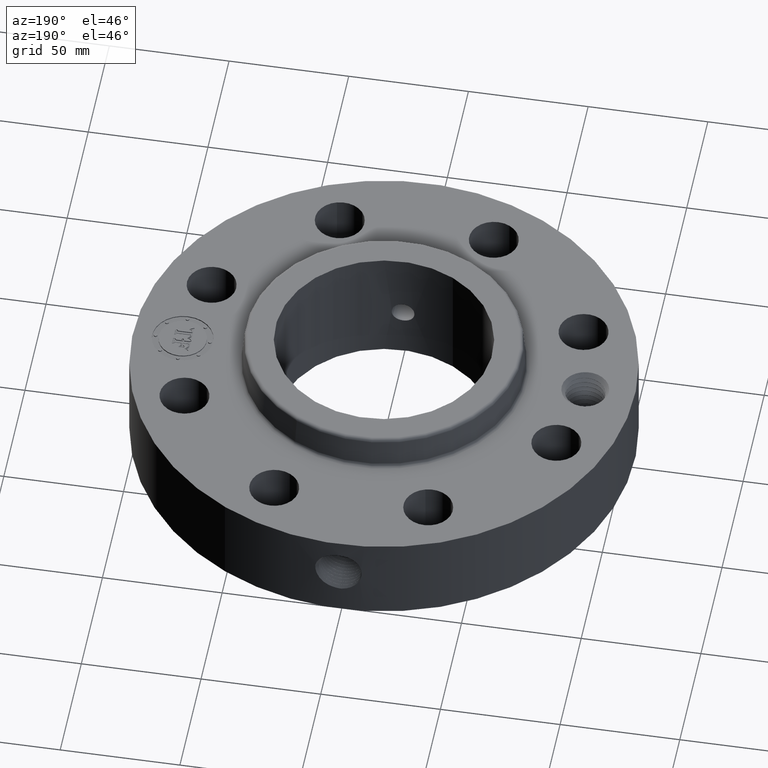
[diagram: clean part render]
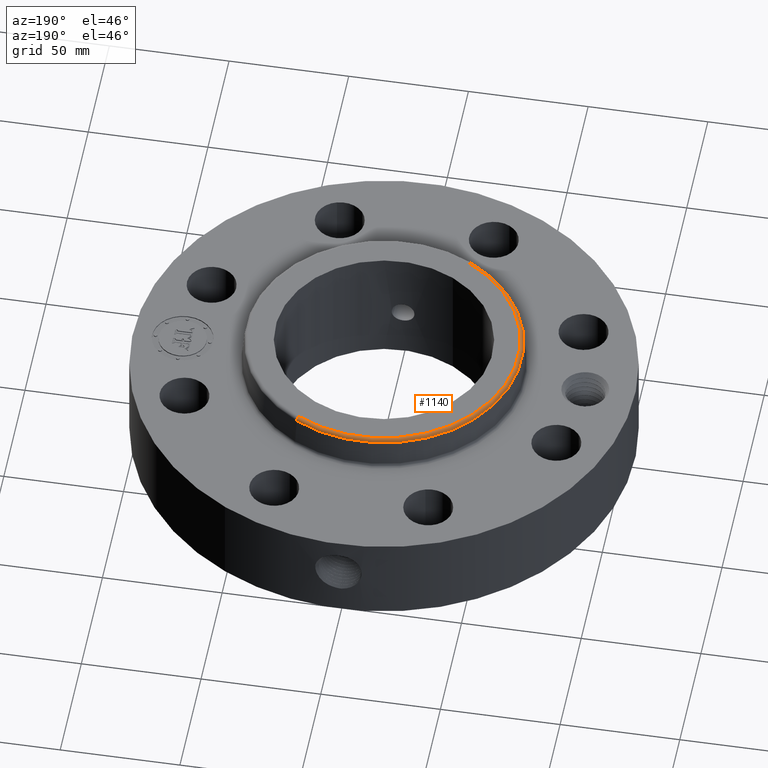
[diagram: same view with one face highlighted and labeled with its STEP entity id]
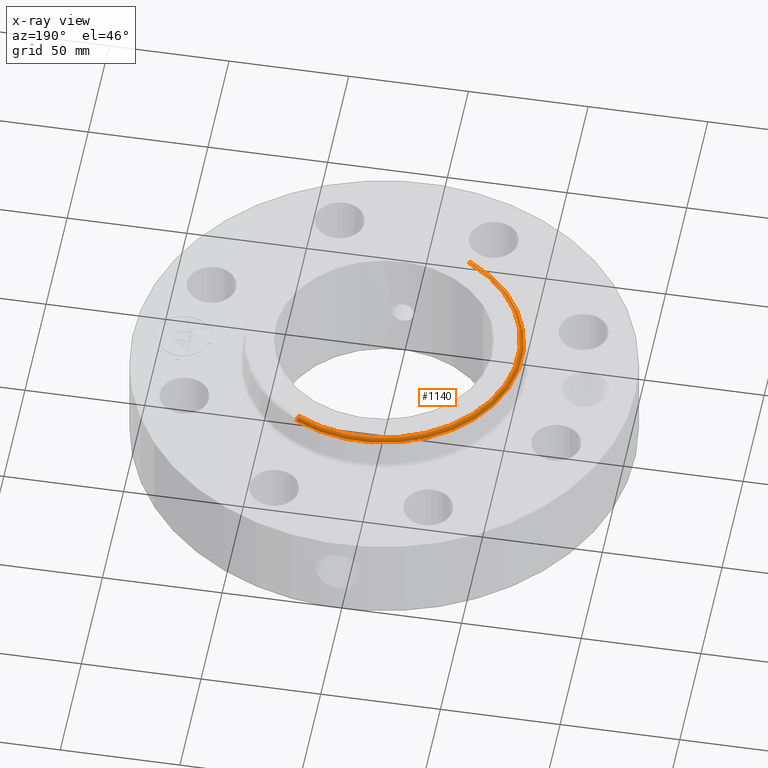
[diagram: x-ray of the same camera — body ghosted, the highlighted face saturated]
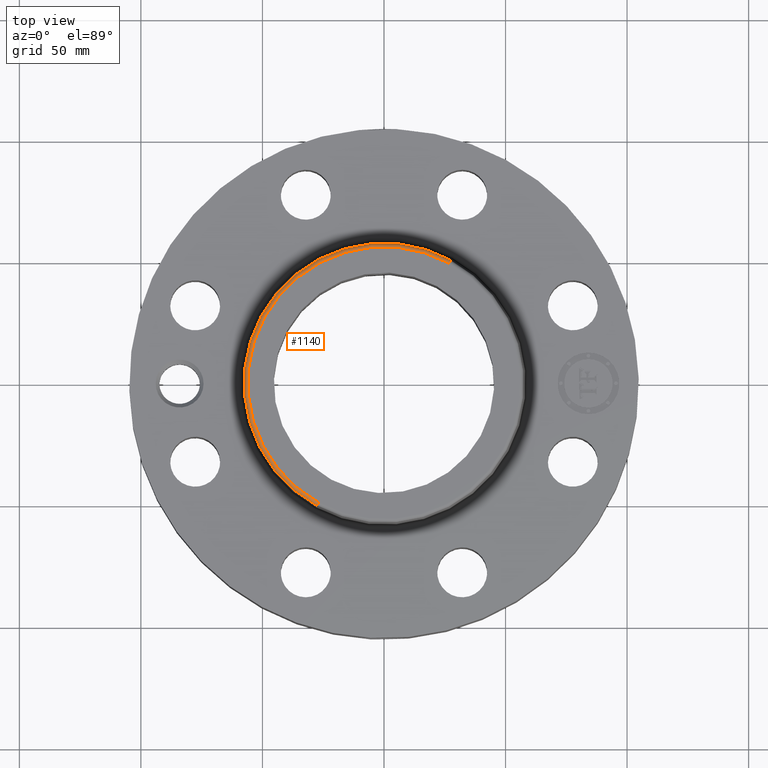
[diagram: same view with one face highlighted and labeled with its STEP entity id]
A machine part, auxiliary view. The second image highlights one B-rep face of the part: STEP entity #1140.
The next image is the same camera in x-ray: the body ghosted, the highlighted face saturated — about 0% of this face is hidden behind the body in this view.
A second angle (top view) of the same face is appended — the face is thin or edge-on in the first view.
In plain terms, the highlighted toroidal blend (fillet) surface has major radius 56.0331 mm and minor (blend) radius 1.524 mm.
Its self-contained STEP definition (entity closure, byte-faithful):
#524=AXIS2_PLACEMENT_3D('Circle Axis2P3D',#522,#523,$) ;
#1113=AXIS2_PLACEMENT_3D('Torus Axis2P3D',#1110,#1111,#1112) ;
#1117=AXIS2_PLACEMENT_3D('Circle Axis2P3D',#1115,#1116,$) ;
#1126=AXIS2_PLACEMENT_3D('Circle Axis2P3D',#1124,#1125,$) ;
#1131=AXIS2_PLACEMENT_3D('Circle Axis2P3D',#1129,#1130,$) ;
#517=CARTESIAN_POINT('Vertex',(1.05762543239,1.93597036816,2.12000000001)) ;
#519=CARTESIAN_POINT('Vertex',(-1.05762543239,-1.93597036816,2.12000000001)) ;
#522=CARTESIAN_POINT('Axis2P3D Location',(0.,0.,2.12000000001)) ;
#1110=CARTESIAN_POINT('Axis2P3D Location',(0.,0.,2.06000000001)) ;
#1115=CARTESIAN_POINT('Axis2P3D Location',(0.,0.,2.06522934457)) ;
#1119=CARTESIAN_POINT('Vertex',(-1.08628150317,-1.98842495387,2.06522934457)) ;
#1121=CARTESIAN_POINT('Vertex',(1.08628150317,1.98842495387,2.06522934457)) ;
#1124=CARTESIAN_POINT('Axis2P3D Location',(-1.05762543239,-1.93597036816,2.06000000001)) ;
#1129=CARTESIAN_POINT('Axis2P3D Location',(1.05762543239,1.93597036816,2.06000000001)) ;
#523=DIRECTION('Axis2P3D Direction',(0.,0.,-0.0393700787402)) ;
#1111=DIRECTION('Axis2P3D Direction',(0.,0.,-0.0393700787402)) ;
#1112=DIRECTION('Axis2P3D XDirection',(0.0188750212049,0.0345504945626,0.)) ;
#1116=DIRECTION('Axis2P3D Direction',(0.,0.,-0.0393700787402)) ;
#1125=DIRECTION('Axis2P3D Direction',(0.0345504945626,-0.0188750212049,0.)) ;
#1130=DIRECTION('Axis2P3D Direction',(-0.0345504945626,0.0188750212049,0.)) ;
#1135=ORIENTED_EDGE('',*,*,#1123,.F.) ;
#1136=ORIENTED_EDGE('',*,*,#1128,.T.) ;
#1137=ORIENTED_EDGE('',*,*,#526,.T.) ;
#1138=ORIENTED_EDGE('',*,*,#1133,.F.) ;
#1140=ADVANCED_FACE('PartBody',(#1139),#1114,.T.) ;
#525=CIRCLE('generated circle',#524,2.20602647799) ;
#1118=CIRCLE('generated circle',#1117,2.26579815988) ;
#1127=CIRCLE('generated circle',#1126,0.0600000000002) ;
#1132=CIRCLE('generated circle',#1131,0.0600000000002) ;
#1114=TOROIDAL_SURFACE('homeo Torus',#1113,2.20602647799,0.0600000000002) ;
#526=EDGE_CURVE('',#520,#518,#525,.T.) ;
#1123=EDGE_CURVE('',#1120,#1122,#1118,.T.) ;
#1128=EDGE_CURVE('',#1120,#520,#1127,.F.) ;
#1133=EDGE_CURVE('',#1122,#518,#1132,.F.) ;
#1134=EDGE_LOOP('',(#1135,#1136,#1137,#1138)) ;
#1139=FACE_OUTER_BOUND('',#1134,.T.) ;
#518=VERTEX_POINT('',#517) ;
#520=VERTEX_POINT('',#519) ;
#1120=VERTEX_POINT('',#1119) ;
#1122=VERTEX_POINT('',#1121) ;